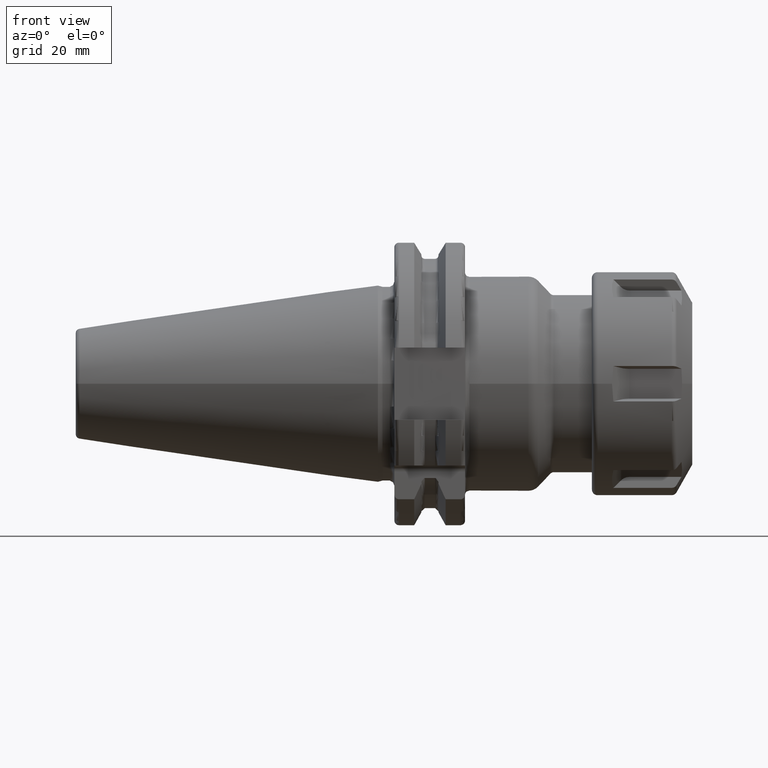
[diagram: clean part render]
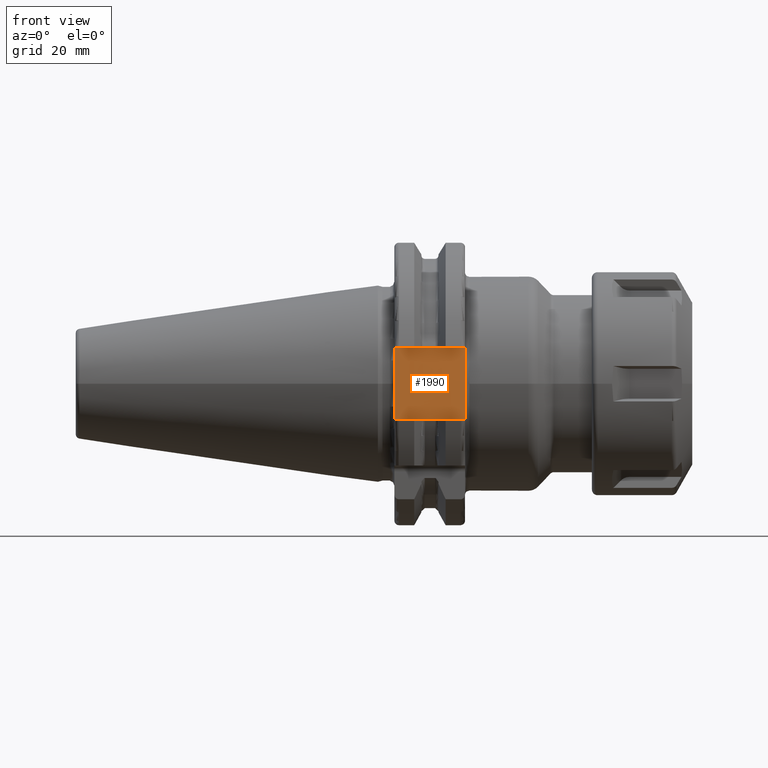
[diagram: same view with one face highlighted and labeled with its STEP entity id]
A machine part, front view. The second image highlights one B-rep face of the part: STEP entity #1990.
In plain terms, the highlighted planar face has unit normal (0, 1, 0).
Its self-contained STEP definition (entity closure, byte-faithful):
#219=DIRECTION('',(0.E0,6.994196026454E-7,9.999999999998E-1));
#220=VECTOR('',#219,5.364927782977E0);
#221=CARTESIAN_POINT('',(1.905E1,-2.485E1,-8.1E0));
#222=LINE('',#221,#220);
#228=DIRECTION('',(0.E0,-1.643578596492E-6,9.999999999986E-1));
#229=VECTOR('',#228,5.368531677989E0);
#230=CARTESIAN_POINT('',(1.905E1,-2.484999117640E1,2.731468322018E0));
#231=LINE('',#230,#229);
#250=CARTESIAN_POINT('',(1.905E1,-2.484999624766E1,-2.735072217024E0));
#251=CARTESIAN_POINT('',(1.905E1,-2.484999624766E1,-2.124110340687E0));
#252=CARTESIAN_POINT('',(1.906193476835E1,-2.485000057461E1,
-9.041333082023E-1));
#253=CARTESIAN_POINT('',(1.906189886262E1,-2.485000361737E1,9.088839376035E-1));
#254=CARTESIAN_POINT('',(1.905E1,-2.484999117640E1,2.122027645293E0));
#255=CARTESIAN_POINT('',(1.905E1,-2.484999117640E1,2.731468322018E0));
#267=DIRECTION('',(-1.E0,0.E0,0.E0));
#268=VECTOR('',#267,1.585E1);
#269=CARTESIAN_POINT('',(1.905E1,-2.485E1,-8.1E0));
#270=LINE('',#269,#268);
#480=DIRECTION('',(-1.E0,0.E0,0.E0));
#481=VECTOR('',#480,1.585E1);
#482=CARTESIAN_POINT('',(1.905E1,-2.485E1,8.1E0));
#483=LINE('',#482,#481);
#549=DIRECTION('',(0.E0,0.E0,1.E0));
#550=VECTOR('',#549,1.62E1);
#551=CARTESIAN_POINT('',(3.2E0,-2.485E1,-8.1E0));
#552=LINE('',#551,#550);
#1450=CARTESIAN_POINT('',(1.905E1,-2.485E1,-8.1E0));
#1452=VERTEX_POINT('',#1450);
#1454=CARTESIAN_POINT('',(1.905E1,-2.485E1,8.1E0));
#1456=VERTEX_POINT('',#1454);
#1478=CARTESIAN_POINT('',(3.2E0,-2.485E1,-8.1E0));
#1480=VERTEX_POINT('',#1478);
#1481=CARTESIAN_POINT('',(3.2E0,-2.485E1,8.1E0));
#1482=VERTEX_POINT('',#1481);
#1524=CARTESIAN_POINT('',(1.905E1,-2.484982501318E1,-2.736091521587E0));
#1526=VERTEX_POINT('',#1524);
#1533=CARTESIAN_POINT('',(1.905E1,-2.485101390847E1,2.725272045317E0));
#1535=VERTEX_POINT('',#1533);
#1974=CARTESIAN_POINT('',(1.905E1,-2.485E1,-8.1E0));
#1975=DIRECTION('',(0.E0,1.E0,0.E0));
#1976=DIRECTION('',(0.E0,0.E0,1.E0));
#1977=AXIS2_PLACEMENT_3D('',#1974,#1975,#1976);
#1978=PLANE('',#1977);
#1979=ORIENTED_EDGE('',*,*,#1948,.F.);
#1980=ORIENTED_EDGE('',*,*,#1967,.F.);
#1981=ORIENTED_EDGE('',*,*,#1936,.F.);
#1983=ORIENTED_EDGE('',*,*,#1982,.T.);
#1985=ORIENTED_EDGE('',*,*,#1984,.T.);
#1987=ORIENTED_EDGE('',*,*,#1986,.F.);
#1988=EDGE_LOOP('',(#1979,#1980,#1981,#1983,#1985,#1987));
#1989=FACE_OUTER_BOUND('',#1988,.F.);
#1990=ADVANCED_FACE('',(#1989),#1978,.F.);
#256=B_SPLINE_CURVE_WITH_KNOTS('',3,(#250,#251,#252,#253,#254,#255),
.UNSPECIFIED.,.F.,.F.,(4,1,1,4),(0.E0,3.333333333333E-1,6.666666666667E-1,1.E0),
.UNSPECIFIED.);
#1936=EDGE_CURVE('',#1452,#1526,#222,.T.);
#1948=EDGE_CURVE('',#1535,#1456,#231,.T.);
#1967=EDGE_CURVE('',#1526,#1535,#256,.T.);
#1982=EDGE_CURVE('',#1452,#1480,#270,.T.);
#1984=EDGE_CURVE('',#1480,#1482,#552,.T.);
#1986=EDGE_CURVE('',#1456,#1482,#483,.T.);